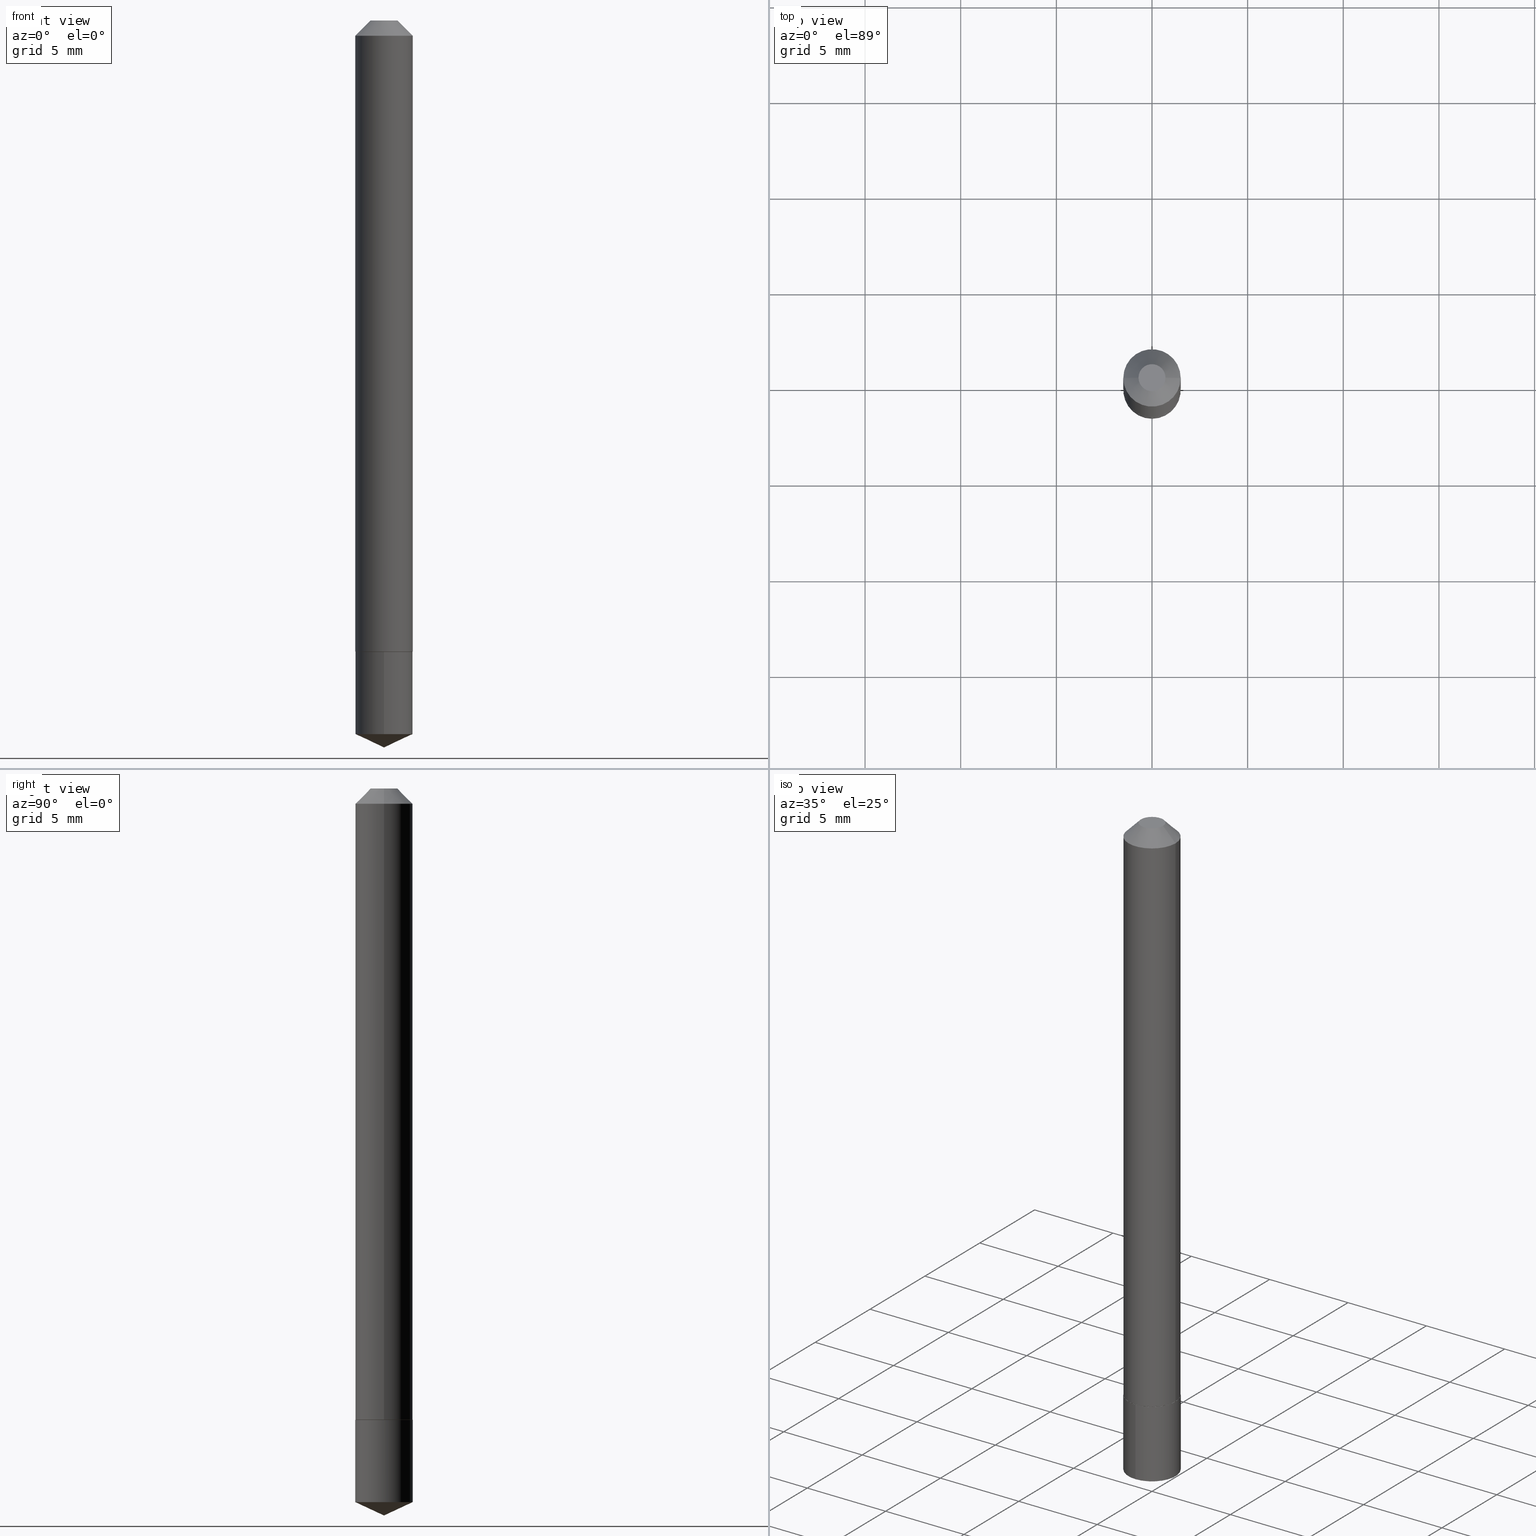
[diagram: canonical four-view strip — front | top / right | iso, engineering-drawing reading convention]
A machine part, canonical four-view strip (front | top / right | iso — engineering-drawing reading convention). The complete STEP part file that produces these views, byte-faithful:
ISO-10303-21;
HEADER;
FILE_DESCRIPTION (( 'STEP AP203' ),
    '1' );
FILE_NAME ('7063.STEP',
    '2024-04-23T14:57:42',
    ( '' ),
    ( '' ),
    'SwSTEP 2.0',
    'SolidWorks 2023',
    '' );
FILE_SCHEMA (( 'CONFIG_CONTROL_DESIGN' ));
ENDSEC;

DATA;
#1 = ORIENTED_EDGE ( 'NONE', *, *, #312, .T. ) ;
#2 = CARTESIAN_POINT ( 'NONE',  ( 7.642090019328604414E-31, -1.091087918388490513E-16, -0.03125000000000021511 ) ) ;
#3 = DIRECTION ( 'NONE',  ( -2.445313604768416538E-29, 3.491703596105404816E-15, 1.000000000000000000 ) ) ;
#4 = CONICAL_SURFACE ( 'NONE', #168, 0.05905000000000000526, 0.7853981633974449483 ) ;
#5 = APPLICATION_PROTOCOL_DEFINITION ( 'international standard', 'config_control_design', 1994, #230 ) ;
#6 = CARTESIAN_POINT ( 'NONE',  ( 3.177153072995728757E-29, -4.536132555425014733E-15, -1.299199999999999910 ) ) ;
#7 = CC_DESIGN_DATE_AND_TIME_ASSIGNMENT ( #128, #282, ( #120 ) ) ;
#8 = CARTESIAN_POINT ( 'NONE',  ( -4.123439461173421824E-16, -0.05905000000000452942, -1.299199999999999688 ) ) ;
#9 = ORIENTED_EDGE ( 'NONE', *, *, #40, .F. ) ;
#10 = EDGE_LOOP ( 'NONE', ( #116, #211 ) ) ;
#11 = AXIS2_PLACEMENT_3D ( 'NONE', #125, #127, #248 ) ;
#12 = SECURITY_CLASSIFICATION_LEVEL ( 'unclassified' ) ;
#13 = EDGE_CURVE ( 'NONE', #281, #300, #200, .T. ) ;
#14 = CARTESIAN_POINT ( 'NONE',  ( 0.05905000000000015792, -4.946730760872968939E-15, -1.298699999999999966 ) ) ;
#15 = PERSON_AND_ORGANIZATION ( #149, #96 ) ;
#16 = CARTESIAN_POINT ( 'NONE',  ( 0.05905000000000000526, -5.214527379562231333E-16, -0.03125000000000021511 ) ) ;
#17 = PERSON_AND_ORGANIZATION ( #149, #96 ) ;
#18 = CARTESIAN_POINT ( 'NONE',  ( 1.033218263338721736E-47, -1.475161848834461579E-33, -4.225031457058385402E-19 ) ) ;
#19 = AXIS2_PLACEMENT_3D ( 'NONE', #65, #208, #327 ) ;
#20 = DIRECTION ( 'NONE',  ( -6.982962677686265922E-15, -1.000000000000000000, 4.626330217890369336E-15 ) ) ;
#21 = EDGE_CURVE ( 'NONE', #333, #300, #62, .T. ) ;
#22 = CARTESIAN_POINT ( 'NONE',  ( -9.261355384233625578E-28, 1.322449965224626373E-13, 37.87397874015748300 ) ) ;
#23 = PRODUCT_RELATED_PRODUCT_CATEGORY ( 'detail', '', ( #322 ) ) ;
#24 = CARTESIAN_POINT ( 'NONE',  ( 5.166091316693608679E-48, -7.375809244172307894E-34, -2.112515728529192701E-19 ) ) ;
#25 = APPROVAL ( #44, 'UNSPECIFIED' ) ;
#26 = CC_DESIGN_APPROVAL ( #163, ( #120 ) ) ;
#27 = ORIENTED_EDGE ( 'NONE', *, *, #232, .T. ) ;
#28 = ORIENTED_EDGE ( 'NONE', *, *, #21, .F. ) ;
#29 = ORIENTED_EDGE ( 'NONE', *, *, #92, .T. ) ;
#30 = DIRECTION ( 'NONE',  ( 1.000000000000000000, 0.000000000000000000, 0.000000000000000000 ) ) ;
#31 = EDGE_LOOP ( 'NONE', ( #389, #328, #209, #205 ) ) ;
#32 = CARTESIAN_POINT ( 'NONE',  ( -0.05905000000000000526, -1.902172317830880095E-15, -0.03125000000000021511 ) ) ;
#33 = DIRECTION ( 'NONE',  ( 1.000000000000000000, -6.982962677686270655E-15, 0.000000000000000000 ) ) ;
#34 = PERSON_AND_ORGANIZATION ( #149, #96 ) ;
#35 = EDGE_CURVE ( 'NONE', #236, #94, #221, .T. ) ;
#36 = CARTESIAN_POINT ( 'NONE',  ( 3.175930338592637077E-29, -4.534386814755593230E-15, -1.298699999999999966 ) ) ;
#37 = CARTESIAN_POINT ( 'NONE',  ( -0.02779999999999999832, 2.486807583591016636E-16, -4.225031457073866508E-19 ) ) ;
#38 = ORIENTED_EDGE ( 'NONE', *, *, #126, .T. ) ;
#39 = CARTESIAN_POINT ( 'NONE',  ( 3.658433684094027732E-29, -5.223937750133296047E-15, -1.496099999999999985 ) ) ;
#40 = EDGE_CURVE ( 'NONE', #300, #281, #302, .T. ) ;
#41 = DATE_AND_TIME ( #340, #194 ) ;
#42 = DIRECTION ( 'NONE',  ( -0.7071067811865451302, 2.468850131082231817E-15, -0.7071067811865499042 ) ) ;
#43 = CLOSED_SHELL ( 'NONE', ( #338, #143, #178, #289, #204, #48, #198, #274 ) ) ;
#44 = APPROVAL_STATUS ( 'not_yet_approved' ) ;
#45 = DIRECTION ( 'NONE',  ( -6.982962677686265922E-15, -1.000000000000000000, 4.626330217890369336E-15 ) ) ;
#46 = PERSON_AND_ORGANIZATION ( #149, #96 ) ;
#47 = PLANE ( 'NONE',  #68 ) ;
#48 = ADVANCED_FACE ( 'NONE', ( #129 ), #218, .T. ) ;
#49 = DIRECTION ( 'NONE',  ( -2.445468806185136597E-29, 3.491481338843145583E-15, 1.000000000000000000 ) ) ;
#50 = APPROVAL_PERSON_ORGANIZATION ( #17, #138, #365 ) ;
#51 = DIRECTION ( 'NONE',  ( -2.445468806185136597E-29, 3.491481338843145583E-15, 1.000000000000000000 ) ) ;
#52 = LINE ( 'NONE', #199, #185 ) ;
#53 = AXIS2_PLACEMENT_3D ( 'NONE', #193, #111, #132 ) ;
#54 = EDGE_LOOP ( 'NONE', ( #214, #265, #144, #28 ) ) ;
#55 = EDGE_LOOP ( 'NONE', ( #87, #272 ) ) ;
#56 = CARTESIAN_POINT ( 'NONE',  ( -0.05905000000000015792, -4.114811329289252948E-15, -1.298699999999999966 ) ) ;
#57 = EDGE_CURVE ( 'NONE', #371, #94, #118, .T. ) ;
#58 =( NAMED_UNIT ( * ) PLANE_ANGLE_UNIT ( ) SI_UNIT ( $, .RADIAN. ) );
#59 = AXIS2_PLACEMENT_3D ( 'NONE', #182, #306, #183 ) ;
#60 = ORIENTED_EDGE ( 'NONE', *, *, #107, .T. ) ;
#61 = CARTESIAN_POINT ( 'NONE',  ( 4.195754854663708995E-16, 0.05904999999999546723, -1.299200000000000133 ) ) ;
#62 = LINE ( 'NONE', #313, #297 ) ;
#63 = CC_DESIGN_PERSON_AND_ORGANIZATION_ASSIGNMENT ( #104, #317, ( #244 ) ) ;
#64 = DIRECTION ( 'NONE',  ( -2.445468806185136597E-29, 3.491481338843145583E-15, 1.000000000000000000 ) ) ;
#65 = CARTESIAN_POINT ( 'NONE',  ( 3.177153072995728757E-29, -4.536132555425014733E-15, -1.299199999999999910 ) ) ;
#66 = CC_DESIGN_PERSON_AND_ORGANIZATION_ASSIGNMENT ( #46, #191, ( #83 ) ) ;
#67 = CARTESIAN_POINT ( 'NONE',  ( 3.175930338592637077E-29, -4.534386814755593230E-15, -1.298699999999999966 ) ) ;
#68 = AXIS2_PLACEMENT_3D ( 'NONE', #24, #164, #287 ) ;
#69 = DIRECTION ( 'NONE',  ( -2.445313604768416818E-29, 3.491703596105404816E-15, 1.000000000000000000 ) ) ;
#70 = SHAPE_DEFINITION_REPRESENTATION ( #296, #81 ) ;
#71 = CARTESIAN_POINT ( 'NONE',  ( 7.642090019328604414E-31, -1.091087918388490513E-16, -0.03125000000000021511 ) ) ;
#72 = DATE_AND_TIME ( #347, #75 ) ;
#73 = CARTESIAN_POINT ( 'NONE',  ( 3.658433684094027732E-29, -5.223937750133295258E-15, -1.496099999999999985 ) ) ;
#74 = VECTOR ( 'NONE', #310, 39.37007874015748143 ) ;
#75 = LOCAL_TIME ( 10, 57, 42.00000000000000000, #110 ) ;
#76 = APPROVAL_STATUS ( 'not_yet_approved' ) ;
#77 = DIRECTION ( 'NONE',  ( 2.445468806185136597E-29, -3.491481338843145583E-15, -1.000000000000000000 ) ) ;
#78 = COORDINATED_UNIVERSAL_TIME_OFFSET ( 5, 0, .BEHIND. ) ;
#79 = ADVANCED_FACE ( 'NONE', ( #150 ), #330, .T. ) ;
#80 = DIRECTION ( 'NONE',  ( 1.000000000000000000, -6.982962677686266711E-15, 4.876227310796756046E-29 ) ) ;
#81 = ADVANCED_BREP_SHAPE_REPRESENTATION ( '7063', ( #113, #373, #368 ), #89 ) ;
#82 = CARTESIAN_POINT ( 'NONE',  ( 3.177153072995728757E-29, -4.536132555425014733E-15, -1.299199999999999910 ) ) ;
#83 = SECURITY_CLASSIFICATION ( '', '', #12 ) ;
#84 = CARTESIAN_POINT ( 'NONE',  ( 3.177153072995728757E-29, -4.536132555425014733E-15, -1.299199999999999910 ) ) ;
#85 = EDGE_CURVE ( 'NONE', #304, #239, #226, .T. ) ;
#86 = APPLICATION_CONTEXT ( 'configuration controlled 3d designs of mechanical parts and assemblies' ) ;
#87 = ORIENTED_EDGE ( 'NONE', *, *, #312, .F. ) ;
#88 = AXIS2_PLACEMENT_3D ( 'NONE', #231, #49, #117 ) ;
#89 =( GEOMETRIC_REPRESENTATION_CONTEXT ( 3 ) GLOBAL_UNCERTAINTY_ASSIGNED_CONTEXT ( ( #250 ) ) GLOBAL_UNIT_ASSIGNED_CONTEXT ( ( #215, #58, #360 ) ) REPRESENTATION_CONTEXT ( 'NONE', 'WORKASPACE' ) );
#90 = ORIENTED_EDGE ( 'NONE', *, *, #364, .F. ) ;
#91 = CYLINDRICAL_SURFACE ( 'NONE', #19, 0.05904999999999999832 ) ;
#92 = EDGE_CURVE ( 'NONE', #189, #239, #98, .T. ) ;
#93 = ORIENTED_EDGE ( 'NONE', *, *, #232, .F. ) ;
#94 = VERTEX_POINT ( 'NONE', #334 ) ;
#95 = DIRECTION ( 'NONE',  ( 1.000000000000000000, -6.982962677686266711E-15, 0.000000000000000000 ) ) ;
#96 = ORGANIZATION ( 'UNSPECIFIED', 'UNSPECIFIED', '' ) ;
#97 = CC_DESIGN_PERSON_AND_ORGANIZATION_ASSIGNMENT ( #15, #252, ( #120 ) ) ;
#98 = LINE ( 'NONE', #39, #329 ) ;
#99 = DIRECTION ( 'NONE',  ( 1.000000000000000000, -6.982962677686266711E-15, 4.876227310796756046E-29 ) ) ;
#100 = ORIENTED_EDGE ( 'NONE', *, *, #85, .F. ) ;
#101 = LINE ( 'NONE', #339, #263 ) ;
#102 = AXIS2_PLACEMENT_3D ( 'NONE', #84, #203, #321 ) ;
#103 = EDGE_LOOP ( 'NONE', ( #90, #159, #171, #174 ) ) ;
#104 = PERSON_AND_ORGANIZATION ( #149, #96 ) ;
#105 = EDGE_LOOP ( 'NONE', ( #154, #256, #382, #383 ) ) ;
#106 = CYLINDRICAL_SURFACE ( 'NONE', #206, 0.05905000000000008159 ) ;
#107 = EDGE_CURVE ( 'NONE', #237, #299, #344, .T. ) ;
#108 = AXIS2_PLACEMENT_3D ( 'NONE', #350, #51, #136 ) ;
#109 = APPROVAL_PERSON_ORGANIZATION ( #165, #25, #370 ) ;
#110 = COORDINATED_UNIVERSAL_TIME_OFFSET ( 5, 0, .BEHIND. ) ;
#111 = DIRECTION ( 'NONE',  ( 2.445313604768416258E-29, -3.491703596105404816E-15, -1.000000000000000000 ) ) ;
#112 = CARTESIAN_POINT ( 'NONE',  ( -0.05905000000000008159, 4.195754854663397395E-16, -2.904631170795525745E-30 ) ) ;
#113 = MANIFOLD_SOLID_BREP ( 'Body-Move/Copy2[1]', #152 ) ;
#114 = CARTESIAN_POINT ( 'NONE',  ( 3.591302469182453116E-29, -5.127503303606418827E-15, -1.468564532785947563 ) ) ;
#115 = EDGE_LOOP ( 'NONE', ( #1, #175, #279, #241 ) ) ;
#116 = ORIENTED_EDGE ( 'NONE', *, *, #240, .T. ) ;
#117 = DIRECTION ( 'NONE',  ( 1.000000000000000000, -6.982962677686270655E-15, 0.000000000000000000 ) ) ;
#118 = CIRCLE ( 'NONE', #337, 0.05905000000000015792 ) ;
#119 = CC_DESIGN_APPROVAL ( #25, ( #244 ) ) ;
#120 = PRODUCT_DEFINITION ( 'UNKNOWN', '', #244, #202 ) ;
#121 = AXIS2_PLACEMENT_3D ( 'NONE', #332, #247, #99 ) ;
#122 = DIRECTION ( 'NONE',  ( -6.982962677686267499E-15, -1.000000000000000000, 3.520397390770434543E-15 ) ) ;
#123 = CARTESIAN_POINT ( 'NONE',  ( 0.05905000000000000526, -5.142211986072580675E-16, -0.03125000000000021511 ) ) ;
#124 = DIRECTION ( 'NONE',  ( -2.445313604768416538E-29, 3.491703596105404816E-15, 1.000000000000000000 ) ) ;
#125 = CARTESIAN_POINT ( 'NONE',  ( 7.642090019328604414E-31, -1.091087918388490513E-16, -0.03125000000000021511 ) ) ;
#126 = EDGE_CURVE ( 'NONE', #94, #371, #135, .T. ) ;
#127 = DIRECTION ( 'NONE',  ( -2.445468806185136597E-29, 3.491481338843145583E-15, 1.000000000000000000 ) ) ;
#128 = DATE_AND_TIME ( #225, #254 ) ;
#129 = FACE_OUTER_BOUND ( 'NONE', #363, .T. ) ;
#130 = COORDINATED_UNIVERSAL_TIME_OFFSET ( 5, 0, .BEHIND. ) ;
#131 = EDGE_CURVE ( 'NONE', #239, #299, #101, .T. ) ;
#132 = DIRECTION ( 'NONE',  ( 6.982962677686265922E-15, 1.000000000000000000, -3.491703596105404816E-15 ) ) ;
#133 = CALENDAR_DATE ( 2024, 23, 4 ) ;
#134 = DIRECTION ( 'NONE',  ( -6.982962677686267499E-15, -1.000000000000000000, 3.520397390770434543E-15 ) ) ;
#135 = CIRCLE ( 'NONE', #380, 0.05905000000000015792 ) ;
#136 = DIRECTION ( 'NONE',  ( 1.000000000000000000, -6.982962677686270655E-15, 0.000000000000000000 ) ) ;
#137 = DIRECTION ( 'NONE',  ( -0.7071067811868433362, 7.493145998871423856E-15, 0.7071067811862516983 ) ) ;
#138 = APPROVAL ( #367, 'UNSPECIFIED' ) ;
#139 = DIRECTION ( 'NONE',  ( -2.445313604768416538E-29, 3.491703596105404816E-15, 1.000000000000000000 ) ) ;
#140 = AXIS2_PLACEMENT_3D ( 'NONE', #82, #139, #20 ) ;
#141 = CIRCLE ( 'NONE', #102, 0.05904999999999999832 ) ;
#142 = ORIENTED_EDGE ( 'NONE', *, *, #190, .F. ) ;
#143 = ADVANCED_FACE ( 'NONE', ( #157 ), #106, .T. ) ;
#144 = ORIENTED_EDGE ( 'NONE', *, *, #13, .T. ) ;
#145 = DIRECTION ( 'NONE',  ( 1.000000000000000000, -6.982962677686266711E-15, 0.000000000000000000 ) ) ;
#146 = EDGE_CURVE ( 'NONE', #239, #304, #353, .T. ) ;
#147 = APPLICATION_PROTOCOL_DEFINITION ( 'international standard', 'config_control_design', 1994, #86 ) ;
#148 = CARTESIAN_POINT ( 'NONE',  ( 3.177153072995728197E-29, -4.536132555425013945E-15, -1.299199999999999688 ) ) ;
#149 = PERSON ( 'UNSPECIFIED', 'UNSPECIFIED', 'UNSPECIFIED', ('UNSPECIFIED'), ('UNSPECIFIED'), ('UNSPECIFIED') ) ;
#150 = FACE_OUTER_BOUND ( 'NONE', #207, .T. ) ;
#151 = LINE ( 'NONE', #390, #331 ) ;
#152 = CLOSED_SHELL ( 'NONE', ( #352, #79, #246, #173, #222 ) ) ;
#153 = CC_DESIGN_APPROVAL ( #138, ( #83 ) ) ;
#154 = ORIENTED_EDGE ( 'NONE', *, *, #378, .F. ) ;
#155 = CARTESIAN_POINT ( 'NONE',  ( 3.177153072995728197E-29, -4.536132555425013945E-15, -1.299199999999999688 ) ) ;
#156 = ORIENTED_EDGE ( 'NONE', *, *, #388, .T. ) ;
#157 = FACE_OUTER_BOUND ( 'NONE', #266, .T. ) ;
#158 = AXIS2_PLACEMENT_3D ( 'NONE', #6, #124, #336 ) ;
#159 = ORIENTED_EDGE ( 'NONE', *, *, #240, .F. ) ;
#160 = CIRCLE ( 'NONE', #228, 0.05855000000000011584 ) ;
#161 = CONICAL_SURFACE ( 'NONE', #201, 84.42940631927480410, 1.134464013796318005 ) ;
#162 = APPROVAL_DATE_TIME ( #41, #163 ) ;
#163 = APPROVAL ( #76, 'UNSPECIFIED' ) ;
#164 = DIRECTION ( 'NONE',  ( 2.438088387897960049E-29, -3.491481338843145188E-15, -1.000000000000000000 ) ) ;
#165 = PERSON_AND_ORGANIZATION ( #149, #96 ) ;
#166 = CARTESIAN_POINT ( 'NONE',  ( 0.000000000000000000, 0.000000000000000000, 0.000000000000000000 ) ) ;
#167 = FACE_OUTER_BOUND ( 'NONE', #103, .T. ) ;
#168 = AXIS2_PLACEMENT_3D ( 'NONE', #233, #77, #320 ) ;
#169 = CARTESIAN_POINT ( 'NONE',  ( -4.123439461173381888E-16, -0.05905000000000514698, -1.468564532785947341 ) ) ;
#170 = FACE_OUTER_BOUND ( 'NONE', #10, .T. ) ;
#171 = ORIENTED_EDGE ( 'NONE', *, *, #21, .T. ) ;
#172 = CIRCLE ( 'NONE', #121, 0.02779999999999999832 ) ;
#173 = ADVANCED_FACE ( 'NONE', ( #319 ), #295, .T. ) ;
#174 = ORIENTED_EDGE ( 'NONE', *, *, #40, .T. ) ;
#175 = ORIENTED_EDGE ( 'NONE', *, *, #253, .T. ) ;
#176 = DIMENSIONAL_EXPONENTS ( 1.000000000000000000, 0.000000000000000000, 0.000000000000000000, 0.000000000000000000, 0.000000000000000000, 0.000000000000000000, 0.000000000000000000 ) ;
#177 = ORIENTED_EDGE ( 'NONE', *, *, #35, .T. ) ;
#178 = ADVANCED_FACE ( 'NONE', ( #292 ), #358, .T. ) ;
#179 = LENGTH_MEASURE_WITH_UNIT ( LENGTH_MEASURE( 0.02539999999999999897 ), #305 );
#180 = CIRCLE ( 'NONE', #359, 0.05855000000000011584 ) ;
#181 = EDGE_LOOP ( 'NONE', ( #366, #60 ) ) ;
#182 = CARTESIAN_POINT ( 'NONE',  ( 0.000000000000000000, 0.000000000000000000, 0.000000000000000000 ) ) ;
#183 = DIRECTION ( 'NONE',  ( 1.000000000000000000, -6.982962677686267499E-15, 4.876176775795936353E-29 ) ) ;
#184 = LINE ( 'NONE', #123, #213 ) ;
#185 = VECTOR ( 'NONE', #197, 39.37007874015748143 ) ;
#186 = CONICAL_SURFACE ( 'NONE', #381, 0.05905000000000000526, 0.7853981633974449483 ) ;
#187 = DIRECTION ( 'NONE',  ( -2.445468806185136597E-29, 3.491481338843145583E-15, 1.000000000000000000 ) ) ;
#188 = DIRECTION ( 'NONE',  ( -2.445468806185136597E-29, 3.491481338843145583E-15, 1.000000000000000000 ) ) ;
#189 = VERTEX_POINT ( 'NONE', #73 ) ;
#190 = EDGE_CURVE ( 'NONE', #189, #304, #52, .T. ) ;
#191 = PERSON_AND_ORGANIZATION_ROLE ( 'classification_officer' ) ;
#192 = AXIS2_PLACEMENT_3D ( 'NONE', #114, #349, #45 ) ;
#193 = CARTESIAN_POINT ( 'NONE',  ( 3.177153072995728757E-29, -4.536132555425014733E-15, -1.299199999999999910 ) ) ;
#194 = LOCAL_TIME ( 10, 57, 42.00000000000000000, #195 ) ;
#195 = COORDINATED_UNIVERSAL_TIME_OFFSET ( 5, 0, .BEHIND. ) ;
#196 = DIRECTION ( 'NONE',  ( 1.000000000000000000, -6.982962677686265922E-15, 4.876176775795935793E-29 ) ) ;
#197 = DIRECTION ( 'NONE',  ( 6.439704144417036664E-15, 0.9063077870366530453, 0.4226182617406928910 ) ) ;
#198 = ADVANCED_FACE ( 'NONE', ( #167 ), #4, .T. ) ;
#199 = CARTESIAN_POINT ( 'NONE',  ( 3.658840495704122953E-29, -5.223360236863041456E-15, -1.496099999999999985 ) ) ;
#200 = CIRCLE ( 'NONE', #291, 0.05905000000000000526 ) ;
#201 = AXIS2_PLACEMENT_3D ( 'NONE', #22, #235, #134 ) ;
#202 = DESIGN_CONTEXT ( 'detailed design', #230, 'design' ) ;
#203 = DIRECTION ( 'NONE',  ( -2.445313604768416538E-29, 3.491703596105404816E-15, 1.000000000000000000 ) ) ;
#204 = ADVANCED_FACE ( 'NONE', ( #261 ), #276, .T. ) ;
#205 = ORIENTED_EDGE ( 'NONE', *, *, #131, .F. ) ;
#206 = AXIS2_PLACEMENT_3D ( 'NONE', #166, #342, #259 ) ;
#207 = EDGE_LOOP ( 'NONE', ( #341, #351, #268 ) ) ;
#208 = DIRECTION ( 'NONE',  ( -2.445313604768416538E-29, 3.491703596105404816E-15, 1.000000000000000000 ) ) ;
#209 = ORIENTED_EDGE ( 'NONE', *, *, #269, .F. ) ;
#210 = DIRECTION ( 'NONE',  ( 2.445468806185136597E-29, -3.491481338843145583E-15, -1.000000000000000000 ) ) ;
#211 = ORIENTED_EDGE ( 'NONE', *, *, #357, .T. ) ;
#212 = DIRECTION ( 'NONE',  ( -1.000000000000000000, 6.982962677686267499E-15, 0.000000000000000000 ) ) ;
#213 = VECTOR ( 'NONE', #326, 39.37007874015748143 ) ;
#214 = ORIENTED_EDGE ( 'NONE', *, *, #357, .F. ) ;
#215 =( CONVERSION_BASED_UNIT ( 'INCH', #179 ) LENGTH_UNIT ( ) NAMED_UNIT ( #176 ) );
#216 = DIRECTION ( 'NONE',  ( -6.328713451373380423E-15, -0.9063077870366499367, 0.4226182617406991082 ) ) ;
#217 = FACE_OUTER_BOUND ( 'NONE', #31, .T. ) ;
#218 = CYLINDRICAL_SURFACE ( 'NONE', #59, 0.05905000000000008159 ) ;
#219 = CALENDAR_DATE ( 2024, 23, 4 ) ;
#220 = CIRCLE ( 'NONE', #375, 0.02779999999999999832 ) ;
#221 = LINE ( 'NONE', #14, #74 ) ;
#222 = ADVANCED_FACE ( 'NONE', ( #376 ), #290, .F. ) ;
#223 = ORIENTED_EDGE ( 'NONE', *, *, #294, .T. ) ;
#224 = VERTEX_POINT ( 'NONE', #318 ) ;
#225 = CALENDAR_DATE ( 2024, 23, 4 ) ;
#226 = CIRCLE ( 'NONE', #243, 0.05904999999999999832 ) ;
#227 = CARTESIAN_POINT ( 'NONE',  ( 3.177153072995728197E-29, -4.536132555425013945E-15, -1.299199999999999688 ) ) ;
#228 = AXIS2_PLACEMENT_3D ( 'NONE', #148, #309, #145 ) ;
#229 = APPROVAL_DATE_TIME ( #372, #138 ) ;
#230 = APPLICATION_CONTEXT ( 'configuration controlled 3d designs of mechanical parts and assemblies' ) ;
#231 = CARTESIAN_POINT ( 'NONE',  ( 3.175930338592637077E-29, -4.534386814755593230E-15, -1.298699999999999966 ) ) ;
#232 = EDGE_CURVE ( 'NONE', #371, #300, #377, .T. ) ;
#233 = CARTESIAN_POINT ( 'NONE',  ( 7.642090019328604414E-31, -1.091087918388490513E-16, -0.03125000000000021511 ) ) ;
#234 = CC_DESIGN_DATE_AND_TIME_ASSIGNMENT ( #314, #288, ( #83 ) ) ;
#235 = DIRECTION ( 'NONE',  ( -2.445313604768416538E-29, 3.491703596105404816E-15, 1.000000000000000000 ) ) ;
#236 = VERTEX_POINT ( 'NONE', #379 ) ;
#237 = VERTEX_POINT ( 'NONE', #262 ) ;
#238 = CARTESIAN_POINT ( 'NONE',  ( 4.195754854663751396E-16, 0.05904999999999488436, -1.468564532785947785 ) ) ;
#239 = VERTEX_POINT ( 'NONE', #169 ) ;
#240 = EDGE_CURVE ( 'NONE', #333, #224, #220, .T. ) ;
#241 = ORIENTED_EDGE ( 'NONE', *, *, #35, .F. ) ;
#242 = DIRECTION ( 'NONE',  ( -2.445468806185136877E-29, 3.491481338843145188E-15, 1.000000000000000000 ) ) ;
#243 = AXIS2_PLACEMENT_3D ( 'NONE', #245, #311, #361 ) ;
#244 = PRODUCT_DEFINITION_FORMATION_WITH_SPECIFIED_SOURCE ( 'ANY', '', #322, .NOT_KNOWN. ) ;
#245 = CARTESIAN_POINT ( 'NONE',  ( 3.591302469182453116E-29, -5.127503303606418827E-15, -1.468564532785947563 ) ) ;
#246 = ADVANCED_FACE ( 'NONE', ( #293 ), #161, .T. ) ;
#247 = DIRECTION ( 'NONE',  ( -2.445468806185136597E-29, 3.491481338843145583E-15, 1.000000000000000000 ) ) ;
#248 = DIRECTION ( 'NONE',  ( 1.000000000000000000, -6.982962677686267499E-15, 0.000000000000000000 ) ) ;
#249 = APPROVAL_DATE_TIME ( #72, #25 ) ;
#250 = UNCERTAINTY_MEASURE_WITH_UNIT (LENGTH_MEASURE( 1.000000000000000082E-05 ), #215, 'distance_accuracy_value', 'NONE');
#251 = DIRECTION ( 'NONE',  ( 1.000000000000000000, -6.982962677686270655E-15, 0.000000000000000000 ) ) ;
#252 = PERSON_AND_ORGANIZATION_ROLE ( 'creator' ) ;
#253 = EDGE_CURVE ( 'NONE', #301, #371, #267, .T. ) ;
#254 = LOCAL_TIME ( 10, 57, 42.00000000000000000, #78 ) ;
#255 = ORIENTED_EDGE ( 'NONE', *, *, #13, .F. ) ;
#256 = ORIENTED_EDGE ( 'NONE', *, *, #85, .T. ) ;
#257 = COORDINATED_UNIVERSAL_TIME_OFFSET ( 5, 0, .BEHIND. ) ;
#258 = FACE_OUTER_BOUND ( 'NONE', #55, .T. ) ;
#259 = DIRECTION ( 'NONE',  ( 1.000000000000000000, -6.982962677686267499E-15, 4.876176775795936353E-29 ) ) ;
#260 = CC_DESIGN_PERSON_AND_ORGANIZATION_ASSIGNMENT ( #343, #286, ( #244 ) ) ;
#261 = FACE_OUTER_BOUND ( 'NONE', #386, .T. ) ;
#262 = CARTESIAN_POINT ( 'NONE',  ( 4.195754854663750410E-16, 0.05904999999999546723, -1.299200000000000133 ) ) ;
#263 = VECTOR ( 'NONE', #69, 39.37007874015748143 ) ;
#264 = VECTOR ( 'NONE', #270, 39.37007874015748143 ) ;
#265 = ORIENTED_EDGE ( 'NONE', *, *, #364, .T. ) ;
#266 = EDGE_LOOP ( 'NONE', ( #38, #27, #255, #323 ) ) ;
#267 = LINE ( 'NONE', #384, #324 ) ;
#268 = ORIENTED_EDGE ( 'NONE', *, *, #146, .F. ) ;
#269 = EDGE_CURVE ( 'NONE', #299, #237, #141, .T. ) ;
#270 = DIRECTION ( 'NONE',  ( -2.445313604768416818E-29, 3.491703596105404816E-15, 1.000000000000000000 ) ) ;
#271 = MECHANICAL_CONTEXT ( 'NONE', #86, 'mechanical' ) ;
#272 = ORIENTED_EDGE ( 'NONE', *, *, #294, .F. ) ;
#273 = LINE ( 'NONE', #61, #264 ) ;
#274 = ADVANCED_FACE ( 'NONE', ( #170 ), #47, .F. ) ;
#275 = CARTESIAN_POINT ( 'NONE',  ( -9.261355384233625578E-28, 1.322449965224626373E-13, 37.87397874015748300 ) ) ;
#276 = CONICAL_SURFACE ( 'NONE', #108, 0.05905000000000015792, 0.7853981633978666110 ) ;
#277 = PERSON_AND_ORGANIZATION_ROLE ( 'design_owner' ) ;
#278 = APPROVAL_PERSON_ORGANIZATION ( #362, #163, #284 ) ;
#279 = ORIENTED_EDGE ( 'NONE', *, *, #126, .F. ) ;
#280 = FACE_OUTER_BOUND ( 'NONE', #54, .T. ) ;
#281 = VERTEX_POINT ( 'NONE', #16 ) ;
#282 = DATE_TIME_ROLE ( 'creation_date' ) ;
#283 = DIRECTION ( 'NONE',  ( 1.000000000000000000, -6.982962677686267499E-15, 0.000000000000000000 ) ) ;
#284 = APPROVAL_ROLE ( '' ) ;
#285 = ORIENTED_EDGE ( 'NONE', *, *, #57, .T. ) ;
#286 = PERSON_AND_ORGANIZATION_ROLE ( 'design_supplier' ) ;
#287 = DIRECTION ( 'NONE',  ( -1.000000000000000000, 6.982962677686265922E-15, -4.876176775795935793E-29 ) ) ;
#288 = DATE_TIME_ROLE ( 'classification_date' ) ;
#289 = ADVANCED_FACE ( 'NONE', ( #258 ), #374, .F. ) ;
#290 = PLANE ( 'NONE',  #53 ) ;
#291 = AXIS2_PLACEMENT_3D ( 'NONE', #71, #64, #283 ) ;
#292 = FACE_OUTER_BOUND ( 'NONE', #115, .T. ) ;
#293 = FACE_OUTER_BOUND ( 'NONE', #369, .T. ) ;
#294 = EDGE_CURVE ( 'NONE', #301, #236, #160, .T. ) ;
#295 = CYLINDRICAL_SURFACE ( 'NONE', #140, 0.05904999999999999832 ) ;
#296 = PRODUCT_DEFINITION_SHAPE ( 'NONE', 'NONE',  #120 ) ;
#297 = VECTOR ( 'NONE', #42, 39.37007874015748143 ) ;
#298 = LOCAL_TIME ( 10, 57, 42.00000000000000000, #130 ) ;
#299 = VERTEX_POINT ( 'NONE', #8 ) ;
#300 = VERTEX_POINT ( 'NONE', #32 ) ;
#301 = VERTEX_POINT ( 'NONE', #335 ) ;
#302 = CIRCLE ( 'NONE', #11, 0.05905000000000000526 ) ;
#303 = DIRECTION ( 'NONE',  ( 0.000000000000000000, 0.000000000000000000, 1.000000000000000000 ) ) ;
#304 = VERTEX_POINT ( 'NONE', #238 ) ;
#305 =( LENGTH_UNIT ( ) NAMED_UNIT ( * ) SI_UNIT ( $, .METRE. ) );
#306 = DIRECTION ( 'NONE',  ( -2.445468806185136597E-29, 3.491481338843145583E-15, 1.000000000000000000 ) ) ;
#307 = ORIENTED_EDGE ( 'NONE', *, *, #57, .F. ) ;
#308 = AXIS2_PLACEMENT_3D ( 'NONE', #275, #3, #122 ) ;
#309 = DIRECTION ( 'NONE',  ( -2.445468806185136597E-29, 3.491481338843145583E-15, 1.000000000000000000 ) ) ;
#310 = DIRECTION ( 'NONE',  ( 0.7071067811868433362, -2.468850131085355312E-15, 0.7071067811862516983 ) ) ;
#311 = DIRECTION ( 'NONE',  ( -2.445313604768416538E-29, 3.491703596105404816E-15, 1.000000000000000000 ) ) ;
#312 = EDGE_CURVE ( 'NONE', #236, #301, #180, .T. ) ;
#313 = CARTESIAN_POINT ( 'NONE',  ( -0.05905000000000000526, 3.032351542785250307E-16, -0.03125000000000021511 ) ) ;
#314 = DATE_AND_TIME ( #219, #298 ) ;
#315 = AXIS2_PLACEMENT_3D ( 'NONE', #227, #346, #196 ) ;
#316 = DIRECTION ( 'NONE',  ( -2.445468806185136597E-29, 3.491481338843145583E-15, 1.000000000000000000 ) ) ;
#317 = PERSON_AND_ORGANIZATION_ROLE ( 'creator' ) ;
#318 = CARTESIAN_POINT ( 'NONE',  ( 0.02779999999999999832, -3.524715214726533365E-16, -4.225031457039280658E-19 ) ) ;
#319 = FACE_OUTER_BOUND ( 'NONE', #105, .T. ) ;
#320 = DIRECTION ( 'NONE',  ( -1.000000000000000000, 6.982962677686267499E-15, 0.000000000000000000 ) ) ;
#321 = DIRECTION ( 'NONE',  ( -6.982962677686265922E-15, -1.000000000000000000, 4.626330217890369336E-15 ) ) ;
#322 = PRODUCT ( '7063', '7063', '', ( #271 ) ) ;
#323 = ORIENTED_EDGE ( 'NONE', *, *, #388, .F. ) ;
#324 = VECTOR ( 'NONE', #137, 39.37007874015748143 ) ;
#325 = CC_DESIGN_PERSON_AND_ORGANIZATION_ASSIGNMENT ( #34, #277, ( #322 ) ) ;
#326 = DIRECTION ( 'NONE',  ( 0.7071067811865451302, -7.319954787623248157E-15, -0.7071067811865499042 ) ) ;
#327 = DIRECTION ( 'NONE',  ( -6.982962677686265922E-15, -1.000000000000000000, 4.626330217890369336E-15 ) ) ;
#328 = ORIENTED_EDGE ( 'NONE', *, *, #378, .T. ) ;
#329 = VECTOR ( 'NONE', #216, 39.37007874015748854 ) ;
#330 = CONICAL_SURFACE ( 'NONE', #308, 84.42940631927480410, 1.134464013796318005 ) ;
#331 = VECTOR ( 'NONE', #242, 39.37007874015748143 ) ;
#332 = CARTESIAN_POINT ( 'NONE',  ( 1.033218263338721736E-47, -1.475161848834461579E-33, -4.225031457058385402E-19 ) ) ;
#333 = VERTEX_POINT ( 'NONE', #37 ) ;
#334 = CARTESIAN_POINT ( 'NONE',  ( 0.05905000000000015792, -4.946730760872968939E-15, -1.298699999999999966 ) ) ;
#335 = CARTESIAN_POINT ( 'NONE',  ( -0.05855000000000011584, -4.117460556463364149E-15, -1.299199999999999688 ) ) ;
#336 = DIRECTION ( 'NONE',  ( -6.982962677686265922E-15, -1.000000000000000000, 4.626330217890369336E-15 ) ) ;
#337 = AXIS2_PLACEMENT_3D ( 'NONE', #36, #188, #33 ) ;
#338 = ADVANCED_FACE ( 'NONE', ( #280 ), #186, .T. ) ;
#339 = CARTESIAN_POINT ( 'NONE',  ( -4.123439461173421824E-16, -0.05905000000000452942, -1.299199999999999688 ) ) ;
#340 = CALENDAR_DATE ( 2024, 23, 4 ) ;
#341 = ORIENTED_EDGE ( 'NONE', *, *, #92, .F. ) ;
#342 = DIRECTION ( 'NONE',  ( -2.445468806185136597E-29, 3.491481338843145583E-15, 1.000000000000000000 ) ) ;
#343 = PERSON_AND_ORGANIZATION ( #149, #96 ) ;
#344 = CIRCLE ( 'NONE', #158, 0.05904999999999999832 ) ;
#345 = LOCAL_TIME ( 10, 57, 42.00000000000000000, #257 ) ;
#346 = DIRECTION ( 'NONE',  ( -2.438088387897960049E-29, 3.491481338843145188E-15, 1.000000000000000000 ) ) ;
#347 = CALENDAR_DATE ( 2024, 23, 4 ) ;
#348 = DIRECTION ( 'NONE',  ( -2.445468806185136877E-29, 3.491481338843145188E-15, 1.000000000000000000 ) ) ;
#349 = DIRECTION ( 'NONE',  ( -2.445313604768416538E-29, 3.491703596105404816E-15, 1.000000000000000000 ) ) ;
#350 = CARTESIAN_POINT ( 'NONE',  ( 3.175930338592637077E-29, -4.534386814755593230E-15, -1.298699999999999966 ) ) ;
#351 = ORIENTED_EDGE ( 'NONE', *, *, #190, .T. ) ;
#352 = ADVANCED_FACE ( 'NONE', ( #217 ), #91, .T. ) ;
#353 = CIRCLE ( 'NONE', #192, 0.05904999999999999832 ) ;
#354 = DIRECTION ( 'NONE',  ( -2.445468806185136597E-29, 3.491481338843145583E-15, 1.000000000000000000 ) ) ;
#355 = ORIENTED_EDGE ( 'NONE', *, *, #253, .F. ) ;
#356 = CARTESIAN_POINT ( 'NONE',  ( 0.000000000000000000, 0.000000000000000000, 0.000000000000000000 ) ) ;
#357 = EDGE_CURVE ( 'NONE', #224, #333, #172, .T. ) ;
#358 = CONICAL_SURFACE ( 'NONE', #88, 0.05905000000000015792, 0.7853981633978666110 ) ;
#359 = AXIS2_PLACEMENT_3D ( 'NONE', #155, #354, #95 ) ;
#360 =( NAMED_UNIT ( * ) SI_UNIT ( $, .STERADIAN. ) SOLID_ANGLE_UNIT ( ) );
#361 = DIRECTION ( 'NONE',  ( -6.982962677686265922E-15, -1.000000000000000000, 4.626330217890369336E-15 ) ) ;
#362 = PERSON_AND_ORGANIZATION ( #149, #96 ) ;
#363 = EDGE_LOOP ( 'NONE', ( #93, #285, #156, #9 ) ) ;
#364 = EDGE_CURVE ( 'NONE', #224, #281, #184, .T. ) ;
#365 = APPROVAL_ROLE ( '' ) ;
#366 = ORIENTED_EDGE ( 'NONE', *, *, #269, .T. ) ;
#367 = APPROVAL_STATUS ( 'not_yet_approved' ) ;
#368 = AXIS2_PLACEMENT_3D ( 'NONE', #356, #303, #30 ) ;
#369 = EDGE_LOOP ( 'NONE', ( #142, #29, #100 ) ) ;
#370 = APPROVAL_ROLE ( '' ) ;
#371 = VERTEX_POINT ( 'NONE', #56 ) ;
#372 = DATE_AND_TIME ( #133, #345 ) ;
#373 = MANIFOLD_SOLID_BREP ( 'Body-Move/Copy2[2]', #43 ) ;
#374 = PLANE ( 'NONE',  #315 ) ;
#375 = AXIS2_PLACEMENT_3D ( 'NONE', #18, #316, #80 ) ;
#376 = FACE_OUTER_BOUND ( 'NONE', #181, .T. ) ;
#377 = LINE ( 'NONE', #112, #385 ) ;
#378 = EDGE_CURVE ( 'NONE', #304, #237, #273, .T. ) ;
#379 = CARTESIAN_POINT ( 'NONE',  ( 0.05855000000000011584, -4.944985020203545858E-15, -1.299199999999999688 ) ) ;
#380 = AXIS2_PLACEMENT_3D ( 'NONE', #67, #187, #251 ) ;
#381 = AXIS2_PLACEMENT_3D ( 'NONE', #2, #210, #212 ) ;
#382 = ORIENTED_EDGE ( 'NONE', *, *, #131, .T. ) ;
#383 = ORIENTED_EDGE ( 'NONE', *, *, #107, .F. ) ;
#384 = CARTESIAN_POINT ( 'NONE',  ( -0.05905000000000015792, -4.114811329289252948E-15, -1.298699999999999966 ) ) ;
#385 = VECTOR ( 'NONE', #348, 39.37007874015748143 ) ;
#386 = EDGE_LOOP ( 'NONE', ( #355, #223, #177, #307 ) ) ;
#387 = CC_DESIGN_SECURITY_CLASSIFICATION ( #83, ( #244 ) ) ;
#388 = EDGE_CURVE ( 'NONE', #94, #281, #151, .T. ) ;
#389 = ORIENTED_EDGE ( 'NONE', *, *, #146, .T. ) ;
#390 = CARTESIAN_POINT ( 'NONE',  ( 0.05905000000000008159, -4.123439461173746736E-16, 2.879382386107504424E-30 ) ) ;
ENDSEC;
END-ISO-10303-21;
